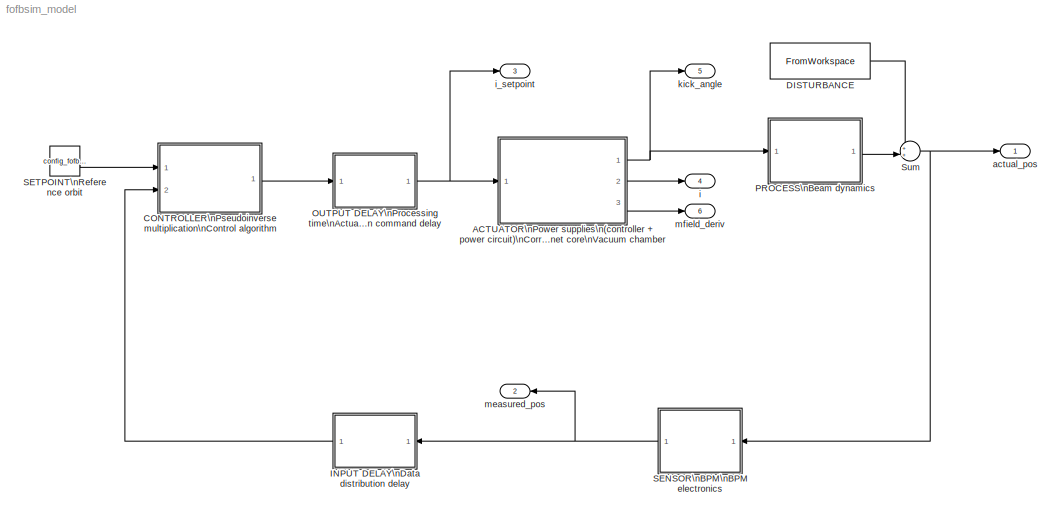
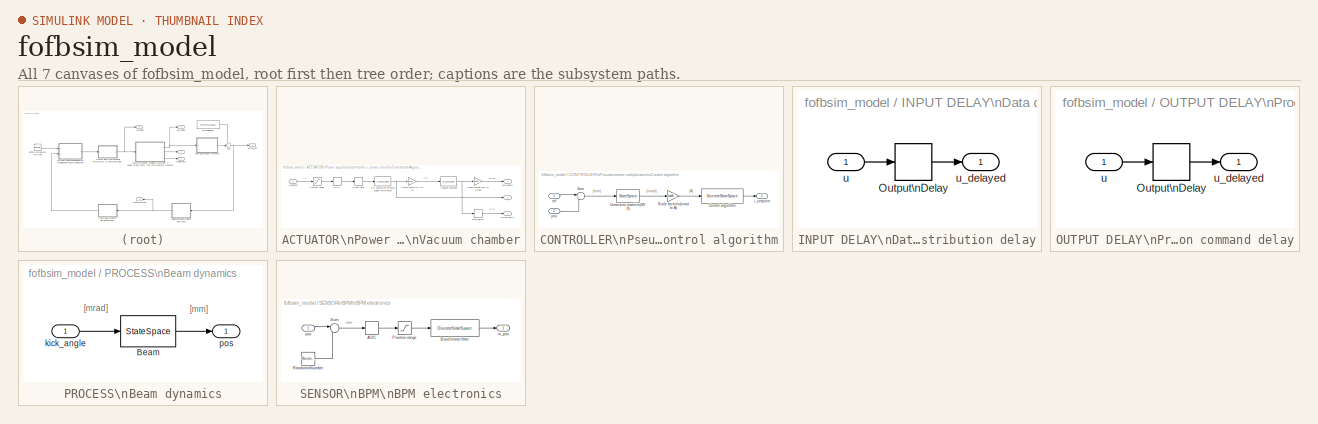
[diagram: thumbnail index - all 7 canvases of the model, root first then tree order]
MODEL fofbsim_model
KIND model
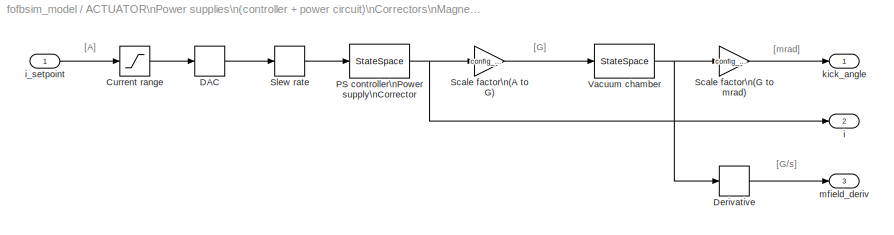
BLOCK [SubSystem] ACTUATOR\nPower supplies\n(controller + power circuit)\nCorrectors\nMagnet core\nVacuum chamber
  FunctionWithSeparateData = off
  MaskHideContents = off
  MinAlgLoopOccurrences = off
  Opaque = off
  Ports = [1, 3]
  PropExecContextOutsideSubsystem = off
  RTWSystemCode = Auto
  RequestExecContextInheritance = off
  SID = 1
BLOCK [Saturate] ACTUATOR\nPower supplies\n(controller + power circuit)\nCorrectors\nMagnet core\nVacuum chamber/Current range
  InputPortMap = u0
  LowerLimit = config_fofbsim.ps_min_current
  Ports = [1, 1]
  SID = 3
  UpperLimit = config_fofbsim.ps_max_current
BLOCK [Quantizer] ACTUATOR\nPower supplies\n(controller + power circuit)\nCorrectors\nMagnet core\nVacuum chamber/DAC
  QuantizationInterval = (config_fofbsim.ps_max_current-config_fofbsim.ps_min_current)/(2^config_fofbsim.ps_dac_bits)
  SID = 4
  SampleTime = 1/config_fofbsim.ps_update_rate
BLOCK [Derivative] ACTUATOR\nPower supplies\n(controller + power circuit)\nCorrectors\nMagnet core\nVacuum chamber/Derivative
  SID = 5
BLOCK [StateSpace] ACTUATOR\nPower supplies\n(controller + power circuit)\nCorrectors\nMagnet core\nVacuum chamber/PS controller\nPower supply\nCorrector
  A = ss_matrices_fofbsim.ps_dynamics.A
  B = ss_matrices_fofbsim.ps_dynamics.B
  C = ss_matrices_fofbsim.ps_dynamics.C
  D = ss_matrices_fofbsim.ps_dynamics.D
  SID = 6
BLOCK [Gain] ACTUATOR\nPower supplies\n(controller + power circuit)\nCorrectors\nMagnet core\nVacuum chamber/Scale factor\n(A to G)
  Gain = config_fofbsim.corr_A_to_G
  OutDataTypeStr = Inherit: Inherit via internal rule
  ParamDataTypeStr = Inherit: Inherit via internal rule
  SID = 7
  SaturateOnIntegerOverflow = off
BLOCK [Gain] ACTUATOR\nPower supplies\n(controller + power circuit)\nCorrectors\nMagnet core\nVacuum chamber/Scale factor\n(G to mrad)
  Gain = config_fofbsim.corr_G_to_mrad
  OutDataTypeStr = Inherit: Inherit via internal rule
  ParamDataTypeStr = Inherit: Inherit via internal rule
  SID = 8
  SaturateOnIntegerOverflow = off
BLOCK [RateLimiter] ACTUATOR\nPower supplies\n(controller + power circuit)\nCorrectors\nMagnet core\nVacuum chamber/Slew rate
  FallingSlewLimit = -config_fofbsim.ps_max_slew_rate
  RisingSlewLimit = config_fofbsim.ps_max_slew_rate
  SID = 9
  SampleTimeMode = inherited
BLOCK [StateSpace] ACTUATOR\nPower supplies\n(controller + power circuit)\nCorrectors\nMagnet core\nVacuum chamber/Vacuum chamber
  A = ss_matrices_fofbsim.vac_dynamics.A
  B = ss_matrices_fofbsim.vac_dynamics.B
  C = ss_matrices_fofbsim.vac_dynamics.C
  D = ss_matrices_fofbsim.vac_dynamics.D
  SID = 10
BLOCK [Outport] ACTUATOR\nPower supplies\n(controller + power circuit)\nCorrectors\nMagnet core\nVacuum chamber/i
  IconDisplay = Port number
  Port = 2
  SID = 12
BLOCK [Inport] ACTUATOR\nPower supplies\n(controller + power circuit)\nCorrectors\nMagnet core\nVacuum chamber/i_setpoint
  IconDisplay = Port number
  SID = 2
BLOCK [Outport] ACTUATOR\nPower supplies\n(controller + power circuit)\nCorrectors\nMagnet core\nVacuum chamber/kick_angle
  IconDisplay = Port number
  SID = 11
BLOCK [Outport] ACTUATOR\nPower supplies\n(controller + power circuit)\nCorrectors\nMagnet core\nVacuum chamber/mfield_deriv
  IconDisplay = Port number
  Port = 3
  SID = 13
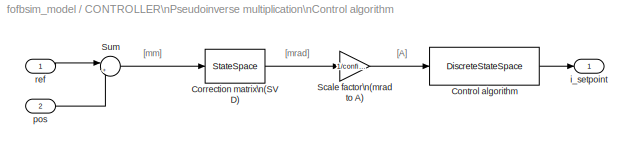
BLOCK [SubSystem] CONTROLLER\nPseudoinverse multiplication\nControl algorithm
  FunctionWithSeparateData = off
  MaskHideContents = off
  MinAlgLoopOccurrences = off
  Opaque = off
  Ports = [2, 1]
  PropExecContextOutsideSubsystem = off
  RTWSystemCode = Auto
  RequestExecContextInheritance = off
  SID = 14
BLOCK [DiscreteStateSpace] CONTROLLER\nPseudoinverse multiplication\nControl algorithm/Control algorithm
  A = ss_matrices_fofbsim.ctrl_algorithm.A
  B = ss_matrices_fofbsim.ctrl_algorithm.B
  C = ss_matrices_fofbsim.ctrl_algorithm.C
  D = ss_matrices_fofbsim.ctrl_algorithm.D
  SID = 17
  SampleTime = 1/config_fofbsim.ps_update_rate
BLOCK [StateSpace] CONTROLLER\nPseudoinverse multiplication\nControl algorithm/Correction matrix\n(SVD)
  A = []
  B = []
  C = []
  D = config_fofbsim.ctrl_correction_matrix
  SID = 18
BLOCK [Gain] CONTROLLER\nPseudoinverse multiplication\nControl algorithm/Scale factor\n(mrad to A)
  Gain = 1/config_fofbsim.corr_A_to_G/config_fofbsim.corr_G_to_mrad
  OutDataTypeStr = Inherit: Inherit via internal rule
  ParamDataTypeStr = Inherit: Inherit via internal rule
  SID = 19
  SaturateOnIntegerOverflow = off
BLOCK [Sum] CONTROLLER\nPseudoinverse multiplication\nControl algorithm/Sum
  IconShape = round
  InputSameDT = off
  Inputs = |+-
  OutDataTypeStr = Inherit: Inherit via internal rule
  Ports = [2, 1]
  SID = 20
  SaturateOnIntegerOverflow = off
BLOCK [Outport] CONTROLLER\nPseudoinverse multiplication\nControl algorithm/i_setpoint
  IconDisplay = Port number
  SID = 21
BLOCK [Inport] CONTROLLER\nPseudoinverse multiplication\nControl algorithm/pos
  IconDisplay = Port number
  Port = 2
  SID = 16
BLOCK [Inport] CONTROLLER\nPseudoinverse multiplication\nControl algorithm/ref
  IconDisplay = Port number
  SID = 15
BLOCK [FromWorkspace] DISTURBANCE
  OutputAfterFinalValue = Holding final value
  SID = 22
  SampleTime = 0
  VariableName = config_fofbsim.beam_disturbance
  ZeroCross = on
BLOCK [SubSystem] INPUT DELAY\nData distribution delay
  FunctionWithSeparateData = off
  MaskHideContents = off
  MinAlgLoopOccurrences = off
  Opaque = off
  Ports = [1, 1]
  PropExecContextOutsideSubsystem = off
  RTWSystemCode = Auto
  RequestExecContextInheritance = off
  SID = 23
BLOCK [TransportDelay] INPUT DELAY\nData distribution delay/Output\nDelay
  DelayTime = config_fofbsim.delay_measurement
  Ports = [1, 1]
  SID = 25
BLOCK [Inport] INPUT DELAY\nData distribution delay/u
  IconDisplay = Port number
  SID = 24
BLOCK [Outport] INPUT DELAY\nData distribution delay/u_delayed
  IconDisplay = Port number
  SID = 26
BLOCK [SubSystem] OUTPUT DELAY\nProcessing time\nActuation command delay
  FunctionWithSeparateData = off
  MaskHideContents = off
  MinAlgLoopOccurrences = off
  Opaque = off
  Ports = [1, 1]
  PropExecContextOutsideSubsystem = off
  RTWSystemCode = Auto
  RequestExecContextInheritance = off
  SID = 27
BLOCK [TransportDelay] OUTPUT DELAY\nProcessing time\nActuation command delay/Output\nDelay
  DelayTime = config_fofbsim.delay_processing + config_fofbsim.delay_actuation
  Ports = [1, 1]
  SID = 29
BLOCK [Inport] OUTPUT DELAY\nProcessing time\nActuation command delay/u
  IconDisplay = Port number
  SID = 28
BLOCK [Outport] OUTPUT DELAY\nProcessing time\nActuation command delay/u_delayed
  IconDisplay = Port number
  SID = 30
BLOCK [SubSystem] PROCESS\nBeam dynamics
  FunctionWithSeparateData = off
  MaskHideContents = off
  MinAlgLoopOccurrences = off
  Opaque = off
  Ports = [1, 1]
  PropExecContextOutsideSubsystem = off
  RTWSystemCode = Auto
  RequestExecContextInheritance = off
  SID = 31
BLOCK [StateSpace] PROCESS\nBeam dynamics/Beam
  A = []
  B = []
  C = []
  D = config_fofbsim.beam_response_matrix
  SID = 33
BLOCK [Inport] PROCESS\nBeam dynamics/kick_angle
  IconDisplay = Port number
  SID = 32
BLOCK [Outport] PROCESS\nBeam dynamics/pos
  IconDisplay = Port number
  SID = 34
BLOCK [SubSystem] SENSOR\nBPM\nBPM electronics
  FunctionWithSeparateData = off
  MaskHideContents = off
  MinAlgLoopOccurrences = off
  Opaque = off
  Ports = [1, 1]
  PropExecContextOutsideSubsystem = off
  RTWSystemCode = Auto
  RequestExecContextInheritance = off
  SID = 35
BLOCK [Quantizer] SENSOR\nBPM\nBPM electronics/ADC
  QuantizationInterval = (config_fofbsim.bpm_max_pos-config_fofbsim.bpm_min_pos)/(2^config_fofbsim.bpm_adc_bits)
  SID = 37
  SampleTime = 1/config_fofbsim.bpm_sampling_rate
BLOCK [DiscreteStateSpace] SENSOR\nBPM\nBPM electronics/Band limiter filter
  A = ss_matrices_fofbsim.bpm_filter.A
  B = ss_matrices_fofbsim.bpm_filter.B
  C = ss_matrices_fofbsim.bpm_filter.C
  D = ss_matrices_fofbsim.bpm_filter.D
  SID = 38
  SampleTime = -1
BLOCK [Saturate] SENSOR\nBPM\nBPM electronics/Position range
  InputPortMap = u0
  LowerLimit = config_fofbsim.bpm_min_pos
  Ports = [1, 1]
  SID = 39
  UpperLimit = config_fofbsim.bpm_max_pos
BLOCK [RandomNumber] SENSOR\nBPM\nBPM electronics/Random\nNumber
  Mean = zeros(size(config_fofbsim.beam_response_matrix,1),1)
  SID = 40
  SampleTime = 1/config_fofbsim.bpm_sampling_rate
  Seed = floor(rand(size(config_fofbsim.beam_response_matrix,1),1)*10000)
  Variance = repmat(config_fofbsim.bpm_noise^2,size(config_fofbsim.beam_response_matrix,1),1)
BLOCK [Sum] SENSOR\nBPM\nBPM electronics/Sum
  IconShape = round
  InputSameDT = off
  Inputs = |++
  OutDataTypeStr = Inherit: Inherit via internal rule
  Ports = [2, 1]
  SID = 41
  SaturateOnIntegerOverflow = off
BLOCK [Outport] SENSOR\nBPM\nBPM electronics/m_pos
  IconDisplay = Port number
  SID = 42
BLOCK [Inport] SENSOR\nBPM\nBPM electronics/pos
  IconDisplay = Port number
  SID = 36
BLOCK [Constant] SETPOINT\nReference orbit
  SID = 43
  Value = config_fofbsim.beam_reference_orbit
BLOCK [Sum] Sum
  IconShape = round
  InputSameDT = off
  Inputs = ++|
  OutDataTypeStr = Inherit: Inherit via internal rule
  Ports = [2, 1]
  SID = 44
  SaturateOnIntegerOverflow = off
BLOCK [Outport] actual_pos
  IconDisplay = Port number
  SID = 45
BLOCK [Outport] i
  IconDisplay = Port number
  Port = 4
  SID = 48
BLOCK [Outport] i_setpoint
  IconDisplay = Port number
  Port = 3
  SID = 47
BLOCK [Outport] kick_angle
  IconDisplay = Port number
  Port = 5
  SID = 49
BLOCK [Outport] measured_pos
  IconDisplay = Port number
  Port = 2
  SID = 46
BLOCK [Outport] mfield_deriv
  IconDisplay = Port number
  Port = 6
  SID = 50
ANNOTATION ACTUATOR\nPower supplies\n(controller + power circuit)\nCorrectors\nMagnet core\nVacuum chamber: [A]
ANNOTATION ACTUATOR\nPower supplies\n(controller + power circuit)\nCorrectors\nMagnet core\nVacuum chamber: [G/s]
ANNOTATION ACTUATOR\nPower supplies\n(controller + power circuit)\nCorrectors\nMagnet core\nVacuum chamber: [G]
ANNOTATION ACTUATOR\nPower supplies\n(controller + power circuit)\nCorrectors\nMagnet core\nVacuum chamber: [mrad]
ANNOTATION CONTROLLER\nPseudoinverse multiplication\nControl algorithm: [A]
ANNOTATION CONTROLLER\nPseudoinverse multiplication\nControl algorithm: [mm]
ANNOTATION CONTROLLER\nPseudoinverse multiplication\nControl algorithm: [mrad]
ANNOTATION PROCESS\nBeam dynamics: [mm]
ANNOTATION PROCESS\nBeam dynamics: [mrad]
ANNOTATION SENSOR\nBPM\nBPM electronics: mm
LINE ACTUATOR\nPower supplies\n(controller + power circuit)\nCorrectors\nMagnet core\nVacuum chamber/Current range:1 -> ACTUATOR\nPower supplies\n(controller + power circuit)\nCorrectors\nMagnet core\nVacuum chamber/DAC:1
LINE ACTUATOR\nPower supplies\n(controller + power circuit)\nCorrectors\nMagnet core\nVacuum chamber/DAC:1 -> ACTUATOR\nPower supplies\n(controller + power circuit)\nCorrectors\nMagnet core\nVacuum chamber/Slew rate:1
LINE ACTUATOR\nPower supplies\n(controller + power circuit)\nCorrectors\nMagnet core\nVacuum chamber/Derivative:1 -> ACTUATOR\nPower supplies\n(controller + power circuit)\nCorrectors\nMagnet core\nVacuum chamber/mfield_deriv:1
NET ACTUATOR\nPower supplies\n(controller + power circuit)\nCorrectors\nMagnet core\nVacuum chamber/PS controller\nPower supply\nCorrector:1 -> ACTUATOR\nPower supplies\n(controller + power circuit)\nCorrectors\nMagnet core\nVacuum chamber/Scale factor\n(A to G):1, ACTUATOR\nPower supplies\n(controller + power circuit)\nCorrectors\nMagnet core\nVacuum chamber/i:1
LINE ACTUATOR\nPower supplies\n(controller + power circuit)\nCorrectors\nMagnet core\nVacuum chamber/Scale factor\n(A to G):1 -> ACTUATOR\nPower supplies\n(controller + power circuit)\nCorrectors\nMagnet core\nVacuum chamber/Vacuum chamber:1
LINE ACTUATOR\nPower supplies\n(controller + power circuit)\nCorrectors\nMagnet core\nVacuum chamber/Scale factor\n(G to mrad):1 -> ACTUATOR\nPower supplies\n(controller + power circuit)\nCorrectors\nMagnet core\nVacuum chamber/kick_angle:1
LINE ACTUATOR\nPower supplies\n(controller + power circuit)\nCorrectors\nMagnet core\nVacuum chamber/Slew rate:1 -> ACTUATOR\nPower supplies\n(controller + power circuit)\nCorrectors\nMagnet core\nVacuum chamber/PS controller\nPower supply\nCorrector:1
NET ACTUATOR\nPower supplies\n(controller + power circuit)\nCorrectors\nMagnet core\nVacuum chamber/Vacuum chamber:1 -> ACTUATOR\nPower supplies\n(controller + power circuit)\nCorrectors\nMagnet core\nVacuum chamber/Derivative:1, ACTUATOR\nPower supplies\n(controller + power circuit)\nCorrectors\nMagnet core\nVacuum chamber/Scale factor\n(G to mrad):1
LINE ACTUATOR\nPower supplies\n(controller + power circuit)\nCorrectors\nMagnet core\nVacuum chamber/i_setpoint:1 -> ACTUATOR\nPower supplies\n(controller + power circuit)\nCorrectors\nMagnet core\nVacuum chamber/Current range:1
NET ACTUATOR\nPower supplies\n(controller + power circuit)\nCorrectors\nMagnet core\nVacuum chamber:1 -> PROCESS\nBeam dynamics:1, kick_angle:1
LINE ACTUATOR\nPower supplies\n(controller + power circuit)\nCorrectors\nMagnet core\nVacuum chamber:2 -> i:1
LINE ACTUATOR\nPower supplies\n(controller + power circuit)\nCorrectors\nMagnet core\nVacuum chamber:3 -> mfield_deriv:1
LINE CONTROLLER\nPseudoinverse multiplication\nControl algorithm/Control algorithm:1 -> CONTROLLER\nPseudoinverse multiplication\nControl algorithm/i_setpoint:1
LINE CONTROLLER\nPseudoinverse multiplication\nControl algorithm/Correction matrix\n(SVD):1 -> CONTROLLER\nPseudoinverse multiplication\nControl algorithm/Scale factor\n(mrad to A):1
LINE CONTROLLER\nPseudoinverse multiplication\nControl algorithm/Scale factor\n(mrad to A):1 -> CONTROLLER\nPseudoinverse multiplication\nControl algorithm/Control algorithm:1
LINE CONTROLLER\nPseudoinverse multiplication\nControl algorithm/Sum:1 -> CONTROLLER\nPseudoinverse multiplication\nControl algorithm/Correction matrix\n(SVD):1
LINE CONTROLLER\nPseudoinverse multiplication\nControl algorithm/pos:1 -> CONTROLLER\nPseudoinverse multiplication\nControl algorithm/Sum:2
LINE CONTROLLER\nPseudoinverse multiplication\nControl algorithm/ref:1 -> CONTROLLER\nPseudoinverse multiplication\nControl algorithm/Sum:1
LINE CONTROLLER\nPseudoinverse multiplication\nControl algorithm:1 -> OUTPUT DELAY\nProcessing time\nActuation command delay:1
LINE DISTURBANCE:1 -> Sum:1
LINE INPUT DELAY\nData distribution delay/Output\nDelay:1 -> INPUT DELAY\nData distribution delay/u_delayed:1
LINE INPUT DELAY\nData distribution delay/u:1 -> INPUT DELAY\nData distribution delay/Output\nDelay:1
LINE INPUT DELAY\nData distribution delay:1 -> CONTROLLER\nPseudoinverse multiplication\nControl algorithm:2
LINE OUTPUT DELAY\nProcessing time\nActuation command delay/Output\nDelay:1 -> OUTPUT DELAY\nProcessing time\nActuation command delay/u_delayed:1
LINE OUTPUT DELAY\nProcessing time\nActuation command delay/u:1 -> OUTPUT DELAY\nProcessing time\nActuation command delay/Output\nDelay:1
NET OUTPUT DELAY\nProcessing time\nActuation command delay:1 -> ACTUATOR\nPower supplies\n(controller + power circuit)\nCorrectors\nMagnet core\nVacuum chamber:1, i_setpoint:1
LINE PROCESS\nBeam dynamics/Beam:1 -> PROCESS\nBeam dynamics/pos:1
LINE PROCESS\nBeam dynamics/kick_angle:1 -> PROCESS\nBeam dynamics/Beam:1
LINE PROCESS\nBeam dynamics:1 -> Sum:2
LINE SENSOR\nBPM\nBPM electronics/ADC:1 -> SENSOR\nBPM\nBPM electronics/Position range:1
LINE SENSOR\nBPM\nBPM electronics/Band limiter filter:1 -> SENSOR\nBPM\nBPM electronics/m_pos:1
LINE SENSOR\nBPM\nBPM electronics/Position range:1 -> SENSOR\nBPM\nBPM electronics/Band limiter filter:1
LINE SENSOR\nBPM\nBPM electronics/Random\nNumber:1 -> SENSOR\nBPM\nBPM electronics/Sum:2
LINE SENSOR\nBPM\nBPM electronics/Sum:1 -> SENSOR\nBPM\nBPM electronics/ADC:1
LINE SENSOR\nBPM\nBPM electronics/pos:1 -> SENSOR\nBPM\nBPM electronics/Sum:1
NET SENSOR\nBPM\nBPM electronics:1 -> INPUT DELAY\nData distribution delay:1, measured_pos:1
LINE SETPOINT\nReference orbit:1 -> CONTROLLER\nPseudoinverse multiplication\nControl algorithm:1
NET Sum:1 -> SENSOR\nBPM\nBPM electronics:1, actual_pos:1
note: NET lines group one-source signal fan-out (src -> all destinations, sorted); 1:1 wires keep LINE
